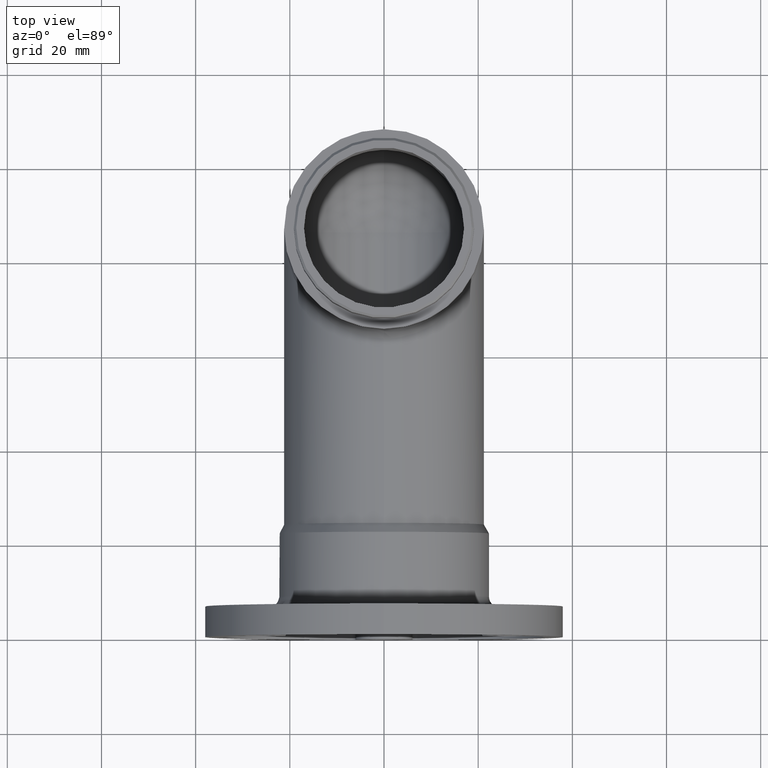
[diagram: clean part render]
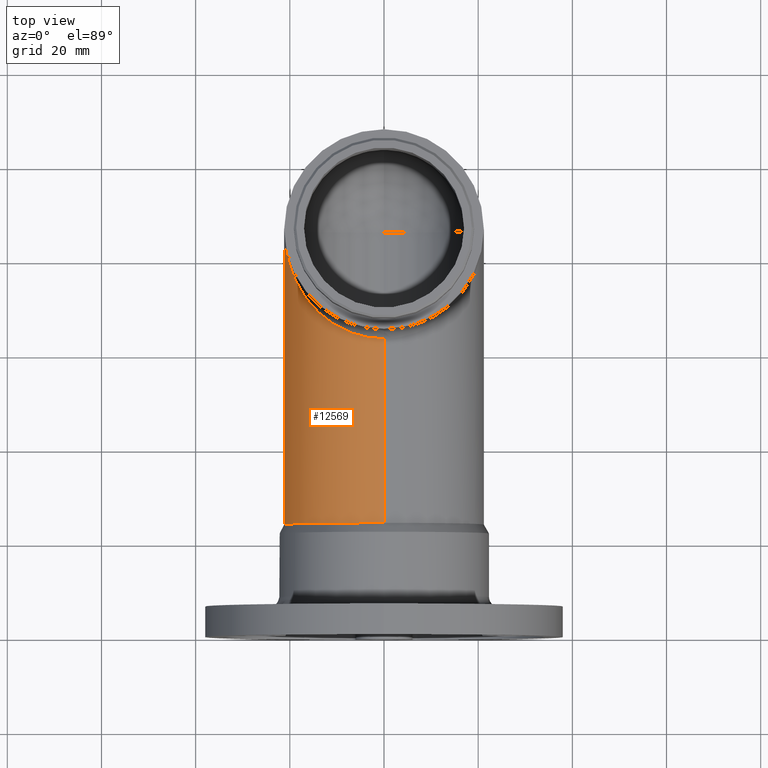
[diagram: same view with one face highlighted and labeled with its STEP entity id]
A machine part, top view. The second image highlights one B-rep face of the part: STEP entity #12569.
In plain terms, the highlighted cylindrical surface (partial cylindrical patch) has radius 21.2 mm, axis along (0, -1, 0).
Its self-contained STEP definition (entity closure, byte-faithful):
#821 = EDGE_LOOP ( 'NONE', ( #1371, #13321, #1380, #4728 ) ) ;
#849 = DIRECTION ( 'NONE',  ( 0.0000000000000000000, 0.0000000000000000000, -1.000000000000000000 ) ) ;
#935 = CARTESIAN_POINT ( 'NONE',  ( -21.19999999999999200, 72.60975464705583700, 12.41867247769037700 ) ) ;
#1285 =( BOUNDED_CURVE ( )  B_SPLINE_CURVE ( 3, ( #3254, #9165, #935, #12588 ),
 .UNSPECIFIED., .F., .F. ) 
 B_SPLINE_CURVE_WITH_KNOTS ( ( 4, 4 ),
 ( 7.019610720368507500E-018, 1.570796326794897000 ),
 .UNSPECIFIED. ) 
 CURVE ( )  GEOMETRIC_REPRESENTATION_ITEM ( )  RATIONAL_B_SPLINE_CURVE ( ( 1.000000000000000000, 0.8047378541243649400, 0.8047378541243649400, 1.000000000000000000 ) ) 
 REPRESENTATION_ITEM ( '' )  );
#1371 = ORIENTED_EDGE ( 'NONE', *, *, #13618, .F. ) ;
#1380 = ORIENTED_EDGE ( 'NONE', *, *, #5293, .T. ) ;
#2558 = VECTOR ( 'NONE', #5821, 1000.000000000000000 ) ;
#2657 = CARTESIAN_POINT ( 'NONE',  ( -21.19999999999999600, 23.90525588832576200, -6.938893903907227600E-015 ) ) ;
#3228 = CARTESIAN_POINT ( 'NONE',  ( 3.469446951953614200E-015, 146.1626550446192400, -3.469446951953614200E-015 ) ) ;
#3254 = CARTESIAN_POINT ( 'NONE',  ( 3.469446951953614200E-015, 63.00000000000002800, 21.19999999999999600 ) ) ;
#3260 = AXIS2_PLACEMENT_3D ( 'NONE', #3228, #8115, #849 ) ;
#3569 = DIRECTION ( 'NONE',  ( -2.192750485135992100E-016, -1.000000000000000000, -0.0000000000000000000 ) ) ;
#3654 = CARTESIAN_POINT ( 'NONE',  ( -21.19999999999999600, 146.1626550446192400, -6.938893903907228400E-015 ) ) ;
#4425 = VERTEX_POINT ( 'NONE', #6841 ) ;
#4728 = ORIENTED_EDGE ( 'NONE', *, *, #10407, .T. ) ;
#5293 = EDGE_CURVE ( 'NONE', #4425, #9896, #1285, .T. ) ;
#5821 = DIRECTION ( 'NONE',  ( 0.0000000000000000000, -1.000000000000000000, 4.468514952174560100E-033 ) ) ;
#5972 = DIRECTION ( 'NONE',  ( 1.000000000000000000, -1.636531581110195400E-016, 0.0000000000000000000 ) ) ;
#6678 = VERTEX_POINT ( 'NONE', #2657 ) ;
#6841 = CARTESIAN_POINT ( 'NONE',  ( 3.469446951953614200E-015, 63.00000000000002800, 21.19999999999999600 ) ) ;
#7128 = VECTOR ( 'NONE', #11956, 1000.000000000000000 ) ;
#7142 = FACE_OUTER_BOUND ( 'NONE', #821, .T. ) ;
#8115 = DIRECTION ( 'NONE',  ( 0.0000000000000000000, -1.000000000000000000, 4.468514952174560100E-033 ) ) ;
#8236 = CARTESIAN_POINT ( 'NONE',  ( 5.241826144642635900E-015, 23.90525588832576900, 0.0000000000000000000 ) ) ;
#8371 = CARTESIAN_POINT ( 'NONE',  ( 3.469446951953614200E-015, 23.90525588832576900, 21.19999999999999900 ) ) ;
#9163 = CYLINDRICAL_SURFACE ( 'NONE', #3260, 21.19999999999999900 ) ;
#9165 = CARTESIAN_POINT ( 'NONE',  ( -12.41867247769038200, 63.00000000000002800, 21.19999999999999200 ) ) ;
#9896 = VERTEX_POINT ( 'NONE', #13490 ) ;
#10407 = EDGE_CURVE ( 'NONE', #9896, #6678, #10652, .T. ) ;
#10652 = LINE ( 'NONE', #3654, #2558 ) ;
#10744 = CARTESIAN_POINT ( 'NONE',  ( 3.469446951953614200E-015, 146.1626550446192400, 21.19999999999999600 ) ) ;
#10786 = CIRCLE ( 'NONE', #13501, 21.19999999999999900 ) ;
#11956 = DIRECTION ( 'NONE',  ( 0.0000000000000000000, -1.000000000000000000, 4.468514952174560100E-033 ) ) ;
#12254 = VERTEX_POINT ( 'NONE', #8371 ) ;
#12569 = ADVANCED_FACE ( 'NONE', ( #7142 ), #9163, .T. ) ;
#12588 = CARTESIAN_POINT ( 'NONE',  ( -21.19999999999999600, 86.20000000000004500, -3.469446951953614200E-015 ) ) ;
#13321 = ORIENTED_EDGE ( 'NONE', *, *, #13779, .F. ) ;
#13490 = CARTESIAN_POINT ( 'NONE',  ( -21.19999999999999600, 86.20000000000004500, -3.469446951953614200E-015 ) ) ;
#13501 = AXIS2_PLACEMENT_3D ( 'NONE', #8236, #3569, #5972 ) ;
#13618 = EDGE_CURVE ( 'NONE', #12254, #6678, #10786, .T. ) ;
#13755 = LINE ( 'NONE', #10744, #7128 ) ;
#13779 = EDGE_CURVE ( 'NONE', #4425, #12254, #13755, .T. ) ;